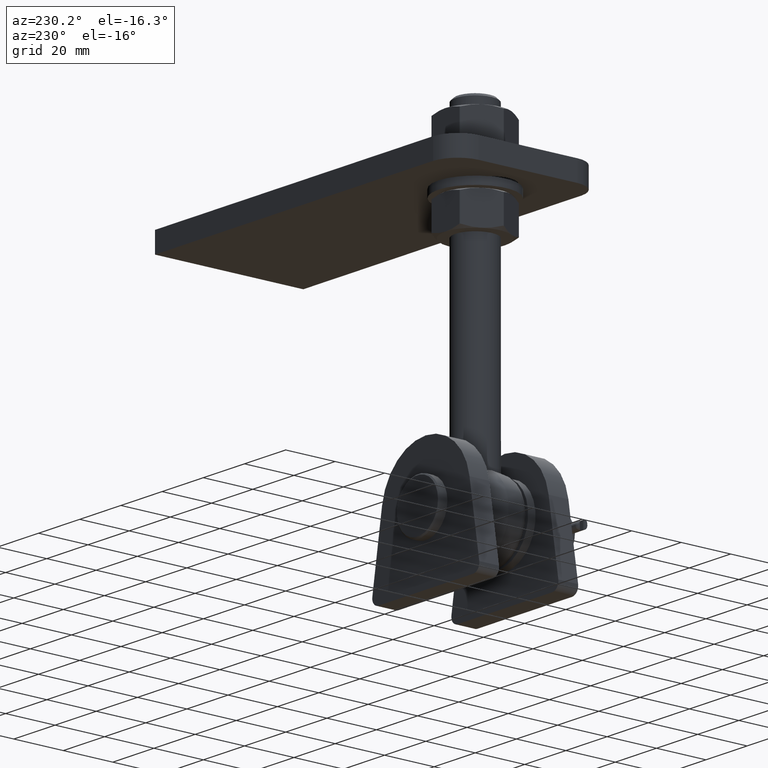
[diagram: clean part render]
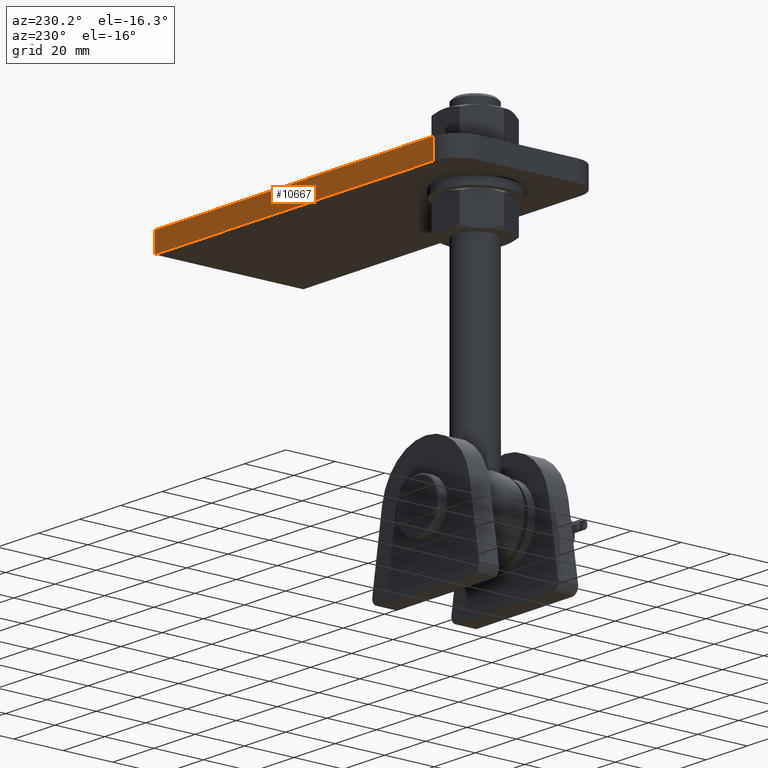
[diagram: same view with one face highlighted and labeled with its STEP entity id]
A machine part, auxiliary view. The second image highlights one B-rep face of the part: STEP entity #10667.
In plain terms, the highlighted planar face has unit normal (0, -1, 0).
Its self-contained STEP definition (entity closure, byte-faithful):
#334 = EDGE_LOOP ( 'NONE', ( #4281, #4329, #3723, #963 ) ) ;
#706 = VECTOR ( 'NONE', #5677, 1000.000000000000000 ) ;
#717 = DIRECTION ( 'NONE',  ( -1.000000000000000000, -0.000000000000000000, -0.000000000000000000 ) ) ;
#963 = ORIENTED_EDGE ( 'NONE', *, *, #11058, .T. ) ;
#984 = VECTOR ( 'NONE', #717, 1000.000000000000000 ) ;
#997 = LINE ( 'NONE', #8399, #8998 ) ;
#1044 = CARTESIAN_POINT ( 'NONE',  ( 72.50000000000000000, 29.99999999999999645, 4.000000000000000000 ) ) ;
#1740 = FACE_OUTER_BOUND ( 'NONE', #334, .T. ) ;
#2367 = EDGE_CURVE ( 'NONE', #6881, #10651, #9755, .T. ) ;
#2447 = PLANE ( 'NONE',  #13968 ) ;
#2703 = LINE ( 'NONE', #2889, #984 ) ;
#2889 = CARTESIAN_POINT ( 'NONE',  ( -72.50000000000000000, 29.99999999999999645, 4.000000000000000000 ) ) ;
#3723 = ORIENTED_EDGE ( 'NONE', *, *, #4945, .F. ) ;
#4281 = ORIENTED_EDGE ( 'NONE', *, *, #2367, .T. ) ;
#4329 = ORIENTED_EDGE ( 'NONE', *, *, #4470, .T. ) ;
#4470 = EDGE_CURVE ( 'NONE', #10651, #12244, #997, .T. ) ;
#4856 = CARTESIAN_POINT ( 'NONE',  ( -72.50000000000000000, 29.99999999999999645, 4.000000000000000000 ) ) ;
#4945 = EDGE_CURVE ( 'NONE', #10108, #12244, #2703, .T. ) ;
#5335 = CARTESIAN_POINT ( 'NONE',  ( 72.50000000000000000, 29.99999999999999645, -4.000000000000000000 ) ) ;
#5580 = CARTESIAN_POINT ( 'NONE',  ( -72.50000000000000000, 29.99999999999999645, -4.000000000000000000 ) ) ;
#5677 = DIRECTION ( 'NONE',  ( -1.000000000000000000, -0.000000000000000000, -0.000000000000000000 ) ) ;
#5992 = DIRECTION ( 'NONE',  ( 0.000000000000000000, -1.000000000000000000, 0.000000000000000000 ) ) ;
#6567 = CARTESIAN_POINT ( 'NONE',  ( -62.49999999999999289, 29.99999999999999645, 4.000000000000000000 ) ) ;
#6771 = LINE ( 'NONE', #1044, #11841 ) ;
#6881 = VERTEX_POINT ( 'NONE', #5335 ) ;
#8298 = DIRECTION ( 'NONE',  ( -0.000000000000000000, -0.000000000000000000, 1.000000000000000000 ) ) ;
#8399 = CARTESIAN_POINT ( 'NONE',  ( -62.49999999999999289, 29.99999999999999645, 4.000000000000000000 ) ) ;
#8998 = VECTOR ( 'NONE', #8298, 1000.000000000000000 ) ;
#9113 = CARTESIAN_POINT ( 'NONE',  ( -62.49999999999999289, 29.99999999999999645, -4.000000000000000000 ) ) ;
#9755 = LINE ( 'NONE', #5580, #706 ) ;
#10108 = VERTEX_POINT ( 'NONE', #10132 ) ;
#10132 = CARTESIAN_POINT ( 'NONE',  ( 72.50000000000000000, 29.99999999999999645, 4.000000000000000000 ) ) ;
#10651 = VERTEX_POINT ( 'NONE', #9113 ) ;
#10667 = ADVANCED_FACE ( 'NONE', ( #1740 ), #2447, .F. ) ;
#11058 = EDGE_CURVE ( 'NONE', #10108, #6881, #6771, .T. ) ;
#11119 = DIRECTION ( 'NONE',  ( -0.000000000000000000, -0.000000000000000000, -1.000000000000000000 ) ) ;
#11841 = VECTOR ( 'NONE', #11119, 1000.000000000000000 ) ;
#12244 = VERTEX_POINT ( 'NONE', #6567 ) ;
#12565 = DIRECTION ( 'NONE',  ( 0.000000000000000000, -0.000000000000000000, -1.000000000000000000 ) ) ;
#13968 = AXIS2_PLACEMENT_3D ( 'NONE', #4856, #5992, #12565 ) ;